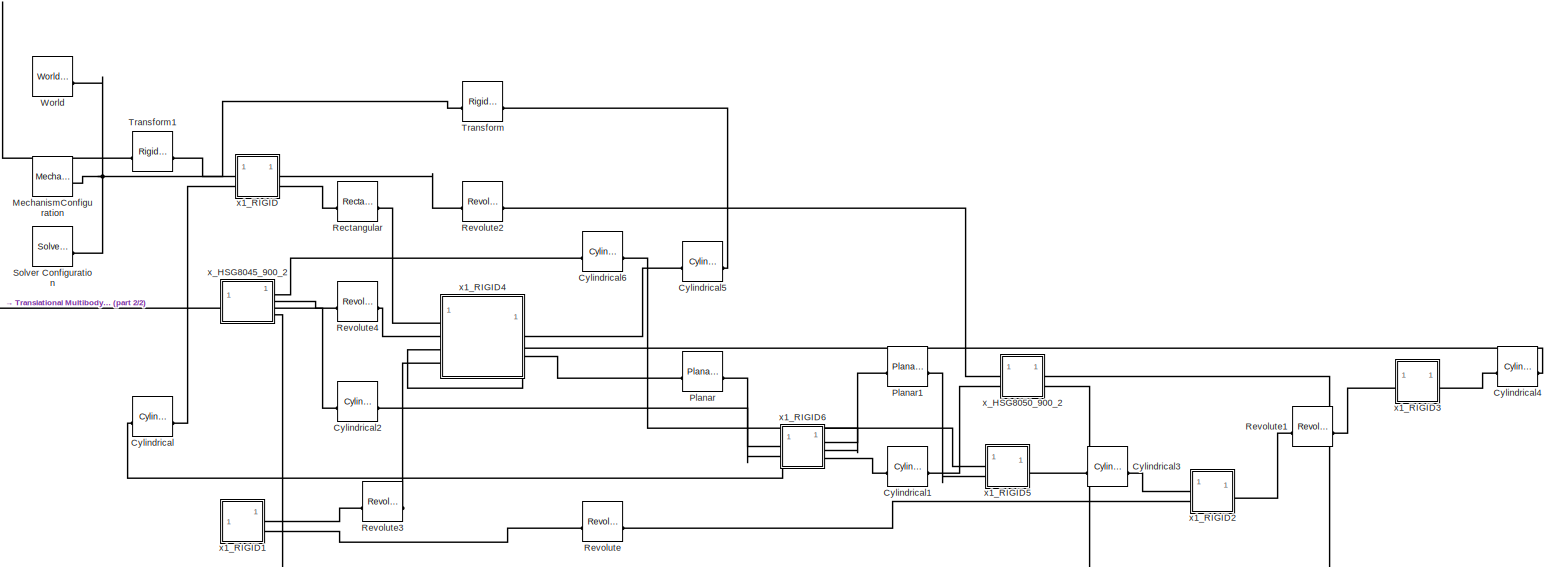
[diagram: root canvas - part 1/2, full width, top band]
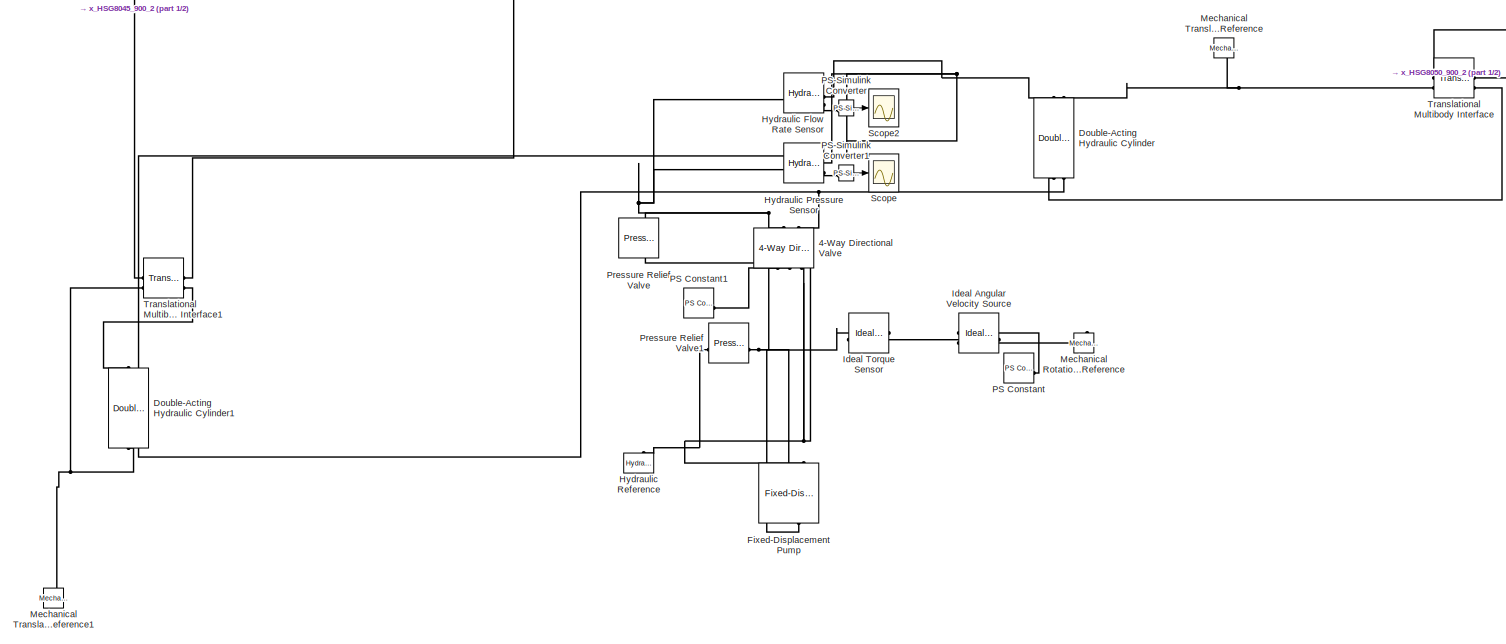
[diagram: root canvas - part 2/2, full width, bottom band]
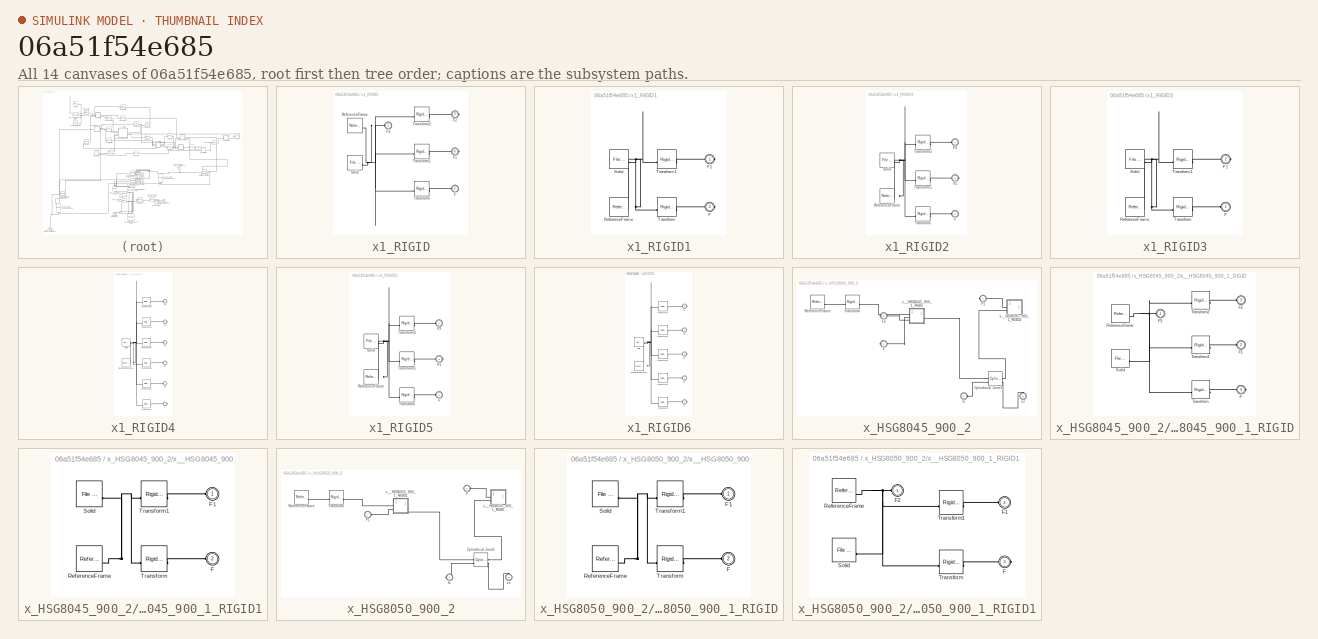
[diagram: thumbnail index - all 14 canvases of the model, root first then tree order]
MODEL slx_06a51f54e685
KIND model
CONFIG AbsTol = auto
CONFIG EnableMultiTasking = off
CONFIG FixedStep = auto
CONFIG MaxStep = auto
CONFIG MinStep = auto
CONFIG RelTol = 1e-3
CONFIG SampleTimeConstraint = Unconstrained
CONFIG SolverName = VariableStepAuto
CONFIG StartTime = 0.0
CONFIG StopTime = 10.0
WORKSPACE source: external: MATLAB File  (data not in archive)
BLOCK [Reference] 4-Way Directional Valve  REF=sh_lib/Valves/Directional Valves/4-Way Directional
Valve
  NameLocation = right
  SourceBlock = sh_lib/Valves/Directional Valves/4-Way Directional\nValve
  SourceType = 4-Way Directional\nValve
BLOCK [Reference] Cylindrical  REF=sm_lib/Joints/Cylindrical
Joint
  SourceBlock = sm_lib/Joints/Cylindrical\nJoint
  SourceType = Cylindrical\nJoint
BLOCK [Reference] Cylindrical1  REF=sm_lib/Joints/Cylindrical
Joint
  SourceBlock = sm_lib/Joints/Cylindrical\nJoint
  SourceType = Cylindrical\nJoint
BLOCK [Reference] Cylindrical2  REF=sm_lib/Joints/Cylindrical
Joint
  SourceBlock = sm_lib/Joints/Cylindrical\nJoint
  SourceType = Cylindrical\nJoint
BLOCK [Reference] Cylindrical3  REF=sm_lib/Joints/Cylindrical
Joint
  SourceBlock = sm_lib/Joints/Cylindrical\nJoint
  SourceType = Cylindrical\nJoint
BLOCK [Reference] Cylindrical4  REF=sm_lib/Joints/Cylindrical
Joint
  SourceBlock = sm_lib/Joints/Cylindrical\nJoint
  SourceType = Cylindrical\nJoint
BLOCK [Reference] Cylindrical5  REF=sm_lib/Joints/Cylindrical
Joint
  SourceBlock = sm_lib/Joints/Cylindrical\nJoint
  SourceType = Cylindrical\nJoint
BLOCK [Reference] Cylindrical6  REF=sm_lib/Joints/Cylindrical
Joint
  SourceBlock = sm_lib/Joints/Cylindrical\nJoint
  SourceType = Cylindrical\nJoint
BLOCK [Reference] Double-Acting Hydraulic Cylinder  REF=sh_lib/Hydraulic Cylinders/Double-Acting
Hydraulic Cylinder
  NameLocation = left
  SourceBlock = sh_lib/Hydraulic Cylinders/Double-Acting\nHydraulic Cylinder
  SourceType = Double-Acting\nHydraulic Cylinder
BLOCK [Reference] Double-Acting Hydraulic Cylinder1  REF=sh_lib/Hydraulic Cylinders/Double-Acting
Hydraulic Cylinder
  Commented = on
  NameLocation = left
  SourceBlock = sh_lib/Hydraulic Cylinders/Double-Acting\nHydraulic Cylinder
  SourceType = Double-Acting\nHydraulic Cylinder
BLOCK [Reference] Fixed-Displacement Pump  REF=sh_lib/Pumps and Motors/Fixed-Displacement
Pump
  NameLocation = right
  SourceBlock = sh_lib/Pumps and Motors/Fixed-Displacement\nPump
  SourceType = Fixed-Displacement\nPump
BLOCK [Reference] Hydraulic Flow Rate Sensor  REF=fl_lib/Hydraulic/Hydraulic Sensors/Hydraulic Flow Rate
Sensor
  SourceBlock = fl_lib/Hydraulic/Hydraulic Sensors/Hydraulic Flow Rate\nSensor
  SourceType = Hydraulic Flow Rate\nSensor
BLOCK [Reference] Hydraulic Pressure Sensor  REF=fl_lib/Hydraulic/Hydraulic Sensors/Hydraulic Pressure
Sensor
  Commented = on
  SourceBlock = fl_lib/Hydraulic/Hydraulic Sensors/Hydraulic Pressure\nSensor
  SourceType = Hydraulic Pressure\nSensor
BLOCK [Reference] Hydraulic Reference  REF=fl_lib/Hydraulic/Hydraulic Elements/Hydraulic Reference
  NameLocation = right
  SourceBlock = fl_lib/Hydraulic/Hydraulic Elements/Hydraulic Reference
  SourceType = Hydraulic Reference
BLOCK [Reference] Ideal Angular Velocity Source  REF=fl_lib/Mechanical/Mechanical Sources/Ideal Angular
Velocity Source
  NameLocation = top
  SourceBlock = fl_lib/Mechanical/Mechanical Sources/Ideal Angular\nVelocity Source
  SourceType = Ideal Angular\nVelocity Source
BLOCK [Reference] Ideal Torque Sensor  REF=fl_lib/Mechanical/Mechanical Sensors/Ideal Torque Sensor
  NameLocation = top
  SourceBlock = fl_lib/Mechanical/Mechanical Sensors/Ideal Torque Sensor
  SourceType = Ideal Torque Sensor
BLOCK [Reference] Mechanical Rotational Reference  REF=fl_lib/Mechanical/Rotational Elements/Mechanical
Rotational Reference
  NameLocation = right
  SourceBlock = fl_lib/Mechanical/Rotational Elements/Mechanical\nRotational Reference
  SourceType = Mechanical\nRotational Reference
BLOCK [Reference] Mechanical Translational Reference  REF=fl_lib/Mechanical/Translational
Elements/Mechanical
Translational
Reference
  NameLocation = left
  SourceBlock = fl_lib/Mechanical/Translational\nElements/Mechanical\nTranslational\nReference
  SourceType = Mechanical\nTranslational\nReference
BLOCK [Reference] Mechanical Translational Reference1  REF=fl_lib/Mechanical/Translational
Elements/Mechanical
Translational
Reference
  Commented = on
  NameLocation = right
  SourceBlock = fl_lib/Mechanical/Translational\nElements/Mechanical\nTranslational\nReference
  SourceType = Mechanical\nTranslational\nReference
BLOCK [Reference] MechanismConfiguration  REF=sm_lib/Utilities/Mechanism
Configuration
  SourceBlock = sm_lib/Utilities/Mechanism\nConfiguration
  SourceType = Mechanism\nConfiguration
BLOCK [Reference] PS Constant  REF=fl_lib/Physical Signals/Sources/PS Constant
  SourceBlock = fl_lib/Physical Signals/Sources/PS Constant
  SourceType = PS Constant
BLOCK [Reference] PS Constant1  REF=fl_lib/Physical Signals/Sources/PS Constant
  SourceBlock = fl_lib/Physical Signals/Sources/PS Constant
  SourceType = PS Constant
BLOCK [Reference] PS-Simulink Converter  REF=nesl_utility/PS-Simulink
Converter
  SourceBlock = nesl_utility/PS-Simulink\nConverter
  SourceType = PS-Simulink\nConverter
BLOCK [Reference] PS-Simulink Converter1  REF=nesl_utility/PS-Simulink
Converter
  Commented = on
  SourceBlock = nesl_utility/PS-Simulink\nConverter
  SourceType = PS-Simulink\nConverter
BLOCK [Reference] Planar  REF=sm_lib/Joints/Planar Joint
  SourceBlock = sm_lib/Joints/Planar Joint
  SourceType = Planar Joint
BLOCK [Reference] Planar1  REF=sm_lib/Joints/Planar Joint
  SourceBlock = sm_lib/Joints/Planar Joint
  SourceType = Planar Joint
BLOCK [Reference] Pressure Relief Valve  REF=sh_lib/Valves/Pressure Control
Valves/Pressure Relief
Valve
  NameLocation = right
  SourceBlock = sh_lib/Valves/Pressure Control\nValves/Pressure Relief\nValve
  SourceType = Pressure Relief\nValve
BLOCK [Reference] Pressure Relief Valve1  REF=sh_lib/Valves/Pressure Control
Valves/Pressure Relief
Valve
  SourceBlock = sh_lib/Valves/Pressure Control\nValves/Pressure Relief\nValve
  SourceType = Pressure Relief\nValve
BLOCK [Reference] Rectangular  REF=sm_lib/Joints/Rectangular
Joint
  SourceBlock = sm_lib/Joints/Rectangular\nJoint
  SourceType = Rectangular\nJoint
BLOCK [Reference] Revolute  REF=sm_lib/Joints/Revolute Joint
  SourceBlock = sm_lib/Joints/Revolute Joint
  SourceType = Revolute Joint
BLOCK [Reference] Revolute1  REF=sm_lib/Joints/Revolute Joint
  SourceBlock = sm_lib/Joints/Revolute Joint
  SourceType = Revolute Joint
BLOCK [Reference] Revolute2  REF=sm_lib/Joints/Revolute Joint
  SourceBlock = sm_lib/Joints/Revolute Joint
  SourceType = Revolute Joint
BLOCK [Reference] Revolute3  REF=sm_lib/Joints/Revolute Joint
  SourceBlock = sm_lib/Joints/Revolute Joint
  SourceType = Revolute Joint
BLOCK [Reference] Revolute4  REF=sm_lib/Joints/Revolute Joint
  SourceBlock = sm_lib/Joints/Revolute Joint
  SourceType = Revolute Joint
BLOCK [Scope] Scope
  Commented = on
  Floating = off
  NumInputPorts = 1
  ScopeSpecificationString = Simulink.scopes.TimeScopeBlockCfg('CurrentConfiguration', extmgr.ConfigurationSet(extmgr.Configuration('Core','General UI',true),extmgr.Configuration('Core','Source UI',true),extmgr.Configuration('Sources','WiredSimulink',true,'DataLoggingVariableName','ScopeData1'),extmgr.Configuration('Visuals','Time Domain',true,'SerializedDisplays',{struct('MinYLimReal','10037620.95835','MaxYLimReal','10037781...<+1494ch>
BLOCK [Scope] Scope2
  Floating = off
  NumInputPorts = 1
  ScopeSpecificationString = Simulink.scopes.TimeScopeBlockCfg('CurrentConfiguration', extmgr.ConfigurationSet(extmgr.Configuration('Core','General UI',true),extmgr.Configuration('Core','Source UI',true),extmgr.Configuration('Sources','WiredSimulink',true),extmgr.Configuration('Visuals','Time Domain',true,'SerializedDisplays',{struct('MinYLimReal','1.42874','MaxYLimReal','1.43773','YLabelReal','','MinYLimMag','1.42874','MaxYL...<+1420ch>
BLOCK [Reference] Solver Configuration  REF=nesl_utility/Solver
Configuration
  SourceBlock = nesl_utility/Solver\nConfiguration
  SourceType = Solver\nConfiguration
BLOCK [Reference] Transform  REF=sm_lib/Frames and
Transforms/Rigid
Transform
  SourceBlock = sm_lib/Frames and\nTransforms/Rigid\nTransform
  SourceType = Rigid\nTransform
BLOCK [Reference] Transform1  REF=sm_lib/Frames and
Transforms/Rigid
Transform
  SourceBlock = sm_lib/Frames and\nTransforms/Rigid\nTransform
  SourceType = Rigid\nTransform
BLOCK [Reference] Translational Multibody Interface  REF=fl_lib/Mechanical/Multibody Interfaces/Translational
Multibody Interface
  SourceBlock = fl_lib/Mechanical/Multibody Interfaces/Translational\nMultibody Interface
  SourceType = Translational\nMultibody Interface
BLOCK [Reference] Translational Multibody Interface1  REF=fl_lib/Mechanical/Multibody Interfaces/Translational
Multibody Interface
  Commented = on
  SourceBlock = fl_lib/Mechanical/Multibody Interfaces/Translational\nMultibody Interface
  SourceType = Translational\nMultibody Interface
BLOCK [Reference] World  REF=sm_lib/Frames and
Transforms/World Frame
  SourceBlock = sm_lib/Frames and\nTransforms/World Frame
  SourceType = World Frame
BLOCK [SubSystem] x1_RIGID
BLOCK [PMIOPort] x1_RIGID/F
  Port = 2
  Side = Left
BLOCK [PMIOPort] x1_RIGID/F1
  Port = 4
  Side = Right
BLOCK [PMIOPort] x1_RIGID/F2
  Port = 3
  Side = Right
BLOCK [PMIOPort] x1_RIGID/F3
  Side = Left
BLOCK [Reference] x1_RIGID/ReferenceFrame  REF=sm_lib/Frames and
Transforms/Reference
Frame
  SourceBlock = sm_lib/Frames and\nTransforms/Reference\nFrame
  SourceType = Reference\nFrame
BLOCK [Reference] x1_RIGID/Solid  REF=sm_lib/Body Elements/File Solid
  SourceBlock = sm_lib/Body Elements/File Solid
  SourceType = File Solid
BLOCK [Reference] x1_RIGID/Transform  REF=sm_lib/Frames and
Transforms/Rigid
Transform
  SourceBlock = sm_lib/Frames and\nTransforms/Rigid\nTransform
  SourceType = Rigid\nTransform
BLOCK [Reference] x1_RIGID/Transform1  REF=sm_lib/Frames and
Transforms/Rigid
Transform
  SourceBlock = sm_lib/Frames and\nTransforms/Rigid\nTransform
  SourceType = Rigid\nTransform
BLOCK [Reference] x1_RIGID/Transform2  REF=sm_lib/Frames and
Transforms/Rigid
Transform
  SourceBlock = sm_lib/Frames and\nTransforms/Rigid\nTransform
  SourceType = Rigid\nTransform
BLOCK [SubSystem] x1_RIGID1
BLOCK [PMIOPort] x1_RIGID1/F
  Port = 2
  Side = Right
BLOCK [PMIOPort] x1_RIGID1/F1
  Side = Right
BLOCK [Reference] x1_RIGID1/ReferenceFrame  REF=sm_lib/Frames and
Transforms/Reference
Frame
  SourceBlock = sm_lib/Frames and\nTransforms/Reference\nFrame
  SourceType = Reference\nFrame
BLOCK [Reference] x1_RIGID1/Solid  REF=sm_lib/Body Elements/File Solid
  SourceBlock = sm_lib/Body Elements/File Solid
  SourceType = File Solid
BLOCK [Reference] x1_RIGID1/Transform  REF=sm_lib/Frames and
Transforms/Rigid
Transform
  SourceBlock = sm_lib/Frames and\nTransforms/Rigid\nTransform
  SourceType = Rigid\nTransform
BLOCK [Reference] x1_RIGID1/Transform1  REF=sm_lib/Frames and
Transforms/Rigid
Transform
  SourceBlock = sm_lib/Frames and\nTransforms/Rigid\nTransform
  SourceType = Rigid\nTransform
BLOCK [SubSystem] x1_RIGID2
BLOCK [PMIOPort] x1_RIGID2/F
  Port = 2
  Side = Left
BLOCK [PMIOPort] x1_RIGID2/F1
  Port = 3
  Side = Right
BLOCK [PMIOPort] x1_RIGID2/F2
  Side = Left
BLOCK [Reference] x1_RIGID2/ReferenceFrame  REF=sm_lib/Frames and
Transforms/Reference
Frame
  SourceBlock = sm_lib/Frames and\nTransforms/Reference\nFrame
  SourceType = Reference\nFrame
BLOCK [Reference] x1_RIGID2/Solid  REF=sm_lib/Body Elements/File Solid
  SourceBlock = sm_lib/Body Elements/File Solid
  SourceType = File Solid
BLOCK [Reference] x1_RIGID2/Transform  REF=sm_lib/Frames and
Transforms/Rigid
Transform
  SourceBlock = sm_lib/Frames and\nTransforms/Rigid\nTransform
  SourceType = Rigid\nTransform
BLOCK [Reference] x1_RIGID2/Transform1  REF=sm_lib/Frames and
Transforms/Rigid
Transform
  SourceBlock = sm_lib/Frames and\nTransforms/Rigid\nTransform
  SourceType = Rigid\nTransform
BLOCK [Reference] x1_RIGID2/Transform2  REF=sm_lib/Frames and
Transforms/Rigid
Transform
  SourceBlock = sm_lib/Frames and\nTransforms/Rigid\nTransform
  SourceType = Rigid\nTransform
BLOCK [SubSystem] x1_RIGID3
BLOCK [PMIOPort] x1_RIGID3/F
  Side = Left
BLOCK [PMIOPort] x1_RIGID3/F1
  Port = 2
  Side = Right
BLOCK [Reference] x1_RIGID3/ReferenceFrame  REF=sm_lib/Frames and
Transforms/Reference
Frame
  SourceBlock = sm_lib/Frames and\nTransforms/Reference\nFrame
  SourceType = Reference\nFrame
BLOCK [Reference] x1_RIGID3/Solid  REF=sm_lib/Body Elements/File Solid
  SourceBlock = sm_lib/Body Elements/File Solid
  SourceType = File Solid
BLOCK [Reference] x1_RIGID3/Transform  REF=sm_lib/Frames and
Transforms/Rigid
Transform
  SourceBlock = sm_lib/Frames and\nTransforms/Rigid\nTransform
  SourceType = Rigid\nTransform
BLOCK [Reference] x1_RIGID3/Transform1  REF=sm_lib/Frames and
Transforms/Rigid
Transform
  SourceBlock = sm_lib/Frames and\nTransforms/Rigid\nTransform
  SourceType = Rigid\nTransform
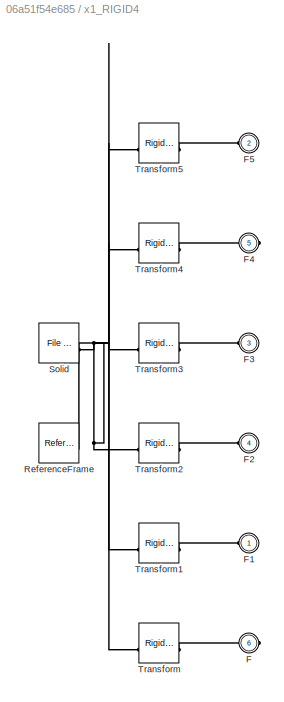
BLOCK [SubSystem] x1_RIGID4
BLOCK [PMIOPort] x1_RIGID4/F
  Port = 6
  Side = Right
BLOCK [PMIOPort] x1_RIGID4/F1
  Side = Left
BLOCK [PMIOPort] x1_RIGID4/F2
  Port = 4
  Side = Left
BLOCK [PMIOPort] x1_RIGID4/F3
  Port = 3
  Side = Left
BLOCK [PMIOPort] x1_RIGID4/F4
  Port = 5
  Side = Right
BLOCK [PMIOPort] x1_RIGID4/F5
  Port = 2
  Side = Left
BLOCK [Reference] x1_RIGID4/ReferenceFrame  REF=sm_lib/Frames and
Transforms/Reference
Frame
  SourceBlock = sm_lib/Frames and\nTransforms/Reference\nFrame
  SourceType = Reference\nFrame
BLOCK [Reference] x1_RIGID4/Solid  REF=sm_lib/Body Elements/File Solid
  SourceBlock = sm_lib/Body Elements/File Solid
  SourceType = File Solid
BLOCK [Reference] x1_RIGID4/Transform  REF=sm_lib/Frames and
Transforms/Rigid
Transform
  SourceBlock = sm_lib/Frames and\nTransforms/Rigid\nTransform
  SourceType = Rigid\nTransform
BLOCK [Reference] x1_RIGID4/Transform1  REF=sm_lib/Frames and
Transforms/Rigid
Transform
  SourceBlock = sm_lib/Frames and\nTransforms/Rigid\nTransform
  SourceType = Rigid\nTransform
BLOCK [Reference] x1_RIGID4/Transform2  REF=sm_lib/Frames and
Transforms/Rigid
Transform
  SourceBlock = sm_lib/Frames and\nTransforms/Rigid\nTransform
  SourceType = Rigid\nTransform
BLOCK [Reference] x1_RIGID4/Transform3  REF=sm_lib/Frames and
Transforms/Rigid
Transform
  SourceBlock = sm_lib/Frames and\nTransforms/Rigid\nTransform
  SourceType = Rigid\nTransform
BLOCK [Reference] x1_RIGID4/Transform4  REF=sm_lib/Frames and
Transforms/Rigid
Transform
  SourceBlock = sm_lib/Frames and\nTransforms/Rigid\nTransform
  SourceType = Rigid\nTransform
BLOCK [Reference] x1_RIGID4/Transform5  REF=sm_lib/Frames and
Transforms/Rigid
Transform
  SourceBlock = sm_lib/Frames and\nTransforms/Rigid\nTransform
  SourceType = Rigid\nTransform
BLOCK [SubSystem] x1_RIGID5
BLOCK [PMIOPort] x1_RIGID5/F
  Port = 2
  Side = Left
BLOCK [PMIOPort] x1_RIGID5/F1
  Port = 3
  Side = Right
BLOCK [PMIOPort] x1_RIGID5/F2
  Side = Left
BLOCK [Reference] x1_RIGID5/ReferenceFrame  REF=sm_lib/Frames and
Transforms/Reference
Frame
  SourceBlock = sm_lib/Frames and\nTransforms/Reference\nFrame
  SourceType = Reference\nFrame
BLOCK [Reference] x1_RIGID5/Solid  REF=sm_lib/Body Elements/File Solid
  SourceBlock = sm_lib/Body Elements/File Solid
  SourceType = File Solid
BLOCK [Reference] x1_RIGID5/Transform  REF=sm_lib/Frames and
Transforms/Rigid
Transform
  SourceBlock = sm_lib/Frames and\nTransforms/Rigid\nTransform
  SourceType = Rigid\nTransform
BLOCK [Reference] x1_RIGID5/Transform1  REF=sm_lib/Frames and
Transforms/Rigid
Transform
  SourceBlock = sm_lib/Frames and\nTransforms/Rigid\nTransform
  SourceType = Rigid\nTransform
BLOCK [Reference] x1_RIGID5/Transform2  REF=sm_lib/Frames and
Transforms/Rigid
Transform
  SourceBlock = sm_lib/Frames and\nTransforms/Rigid\nTransform
  SourceType = Rigid\nTransform
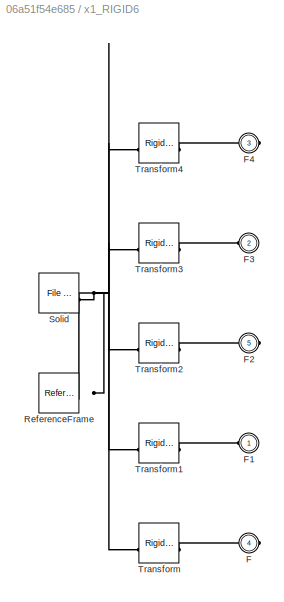
BLOCK [SubSystem] x1_RIGID6
BLOCK [PMIOPort] x1_RIGID6/F
  Port = 4
  Side = Right
BLOCK [PMIOPort] x1_RIGID6/F1
  Side = Left
BLOCK [PMIOPort] x1_RIGID6/F2
  Port = 5
  Side = Right
BLOCK [PMIOPort] x1_RIGID6/F3
  Port = 2
  Side = Left
BLOCK [PMIOPort] x1_RIGID6/F4
  Port = 3
  Side = Right
BLOCK [Reference] x1_RIGID6/ReferenceFrame  REF=sm_lib/Frames and
Transforms/Reference
Frame
  SourceBlock = sm_lib/Frames and\nTransforms/Reference\nFrame
  SourceType = Reference\nFrame
BLOCK [Reference] x1_RIGID6/Solid  REF=sm_lib/Body Elements/File Solid
  SourceBlock = sm_lib/Body Elements/File Solid
  SourceType = File Solid
BLOCK [Reference] x1_RIGID6/Transform  REF=sm_lib/Frames and
Transforms/Rigid
Transform
  SourceBlock = sm_lib/Frames and\nTransforms/Rigid\nTransform
  SourceType = Rigid\nTransform
BLOCK [Reference] x1_RIGID6/Transform1  REF=sm_lib/Frames and
Transforms/Rigid
Transform
  SourceBlock = sm_lib/Frames and\nTransforms/Rigid\nTransform
  SourceType = Rigid\nTransform
BLOCK [Reference] x1_RIGID6/Transform2  REF=sm_lib/Frames and
Transforms/Rigid
Transform
  SourceBlock = sm_lib/Frames and\nTransforms/Rigid\nTransform
  SourceType = Rigid\nTransform
BLOCK [Reference] x1_RIGID6/Transform3  REF=sm_lib/Frames and
Transforms/Rigid
Transform
  SourceBlock = sm_lib/Frames and\nTransforms/Rigid\nTransform
  SourceType = Rigid\nTransform
BLOCK [Reference] x1_RIGID6/Transform4  REF=sm_lib/Frames and
Transforms/Rigid
Transform
  SourceBlock = sm_lib/Frames and\nTransforms/Rigid\nTransform
  SourceType = Rigid\nTransform
BLOCK [SubSystem] x_HSG8045_900_2
BLOCK [Reference] x_HSG8045_900_2/Cylindrical Joint1  REF=sm_lib/Joints/Cylindrical
Joint
  SourceBlock = sm_lib/Joints/Cylindrical\nJoint
  SourceType = Cylindrical\nJoint
BLOCK [PMIOPort] x_HSG8045_900_2/F
  Port = 3
  Side = Right
BLOCK [PMIOPort] x_HSG8045_900_2/F1
  Port = 2
  Side = Right
BLOCK [PMIOPort] x_HSG8045_900_2/F2
  Side = Right
BLOCK [Reference] x_HSG8045_900_2/ReferenceFrame  REF=sm_lib/Frames and
Transforms/Reference
Frame
  SourceBlock = sm_lib/Frames and\nTransforms/Reference\nFrame
  SourceType = Reference\nFrame
BLOCK [Reference] x_HSG8045_900_2/Transform  REF=sm_lib/Frames and
Transforms/Rigid
Transform
  SourceBlock = sm_lib/Frames and\nTransforms/Rigid\nTransform
  SourceType = Rigid\nTransform
BLOCK [PMIOPort] x_HSG8045_900_2/fz
  Port = 4
  Side = Left
BLOCK [PMIOPort] x_HSG8045_900_2/vz
  NameLocation = left
  Port = 5
  Side = Right
BLOCK [SubSystem] x_HSG8045_900_2/x__HSG8045_900_1_RIGID
BLOCK [PMIOPort] x_HSG8045_900_2/x__HSG8045_900_1_RIGID/F
  Port = 4
  Side = Right
BLOCK [PMIOPort] x_HSG8045_900_2/x__HSG8045_900_1_RIGID/F1
  Port = 2
  Side = Left
BLOCK [PMIOPort] x_HSG8045_900_2/x__HSG8045_900_1_RIGID/F2
  Port = 3
  Side = Left
BLOCK [PMIOPort] x_HSG8045_900_2/x__HSG8045_900_1_RIGID/F3
  Side = Left
BLOCK [Reference] x_HSG8045_900_2/x__HSG8045_900_1_RIGID/ReferenceFrame  REF=sm_lib/Frames and
Transforms/Reference
Frame
  SourceBlock = sm_lib/Frames and\nTransforms/Reference\nFrame
  SourceType = Reference\nFrame
BLOCK [Reference] x_HSG8045_900_2/x__HSG8045_900_1_RIGID/Solid  REF=sm_lib/Body Elements/File Solid
  SourceBlock = sm_lib/Body Elements/File Solid
  SourceType = File Solid
BLOCK [Reference] x_HSG8045_900_2/x__HSG8045_900_1_RIGID/Transform  REF=sm_lib/Frames and
Transforms/Rigid
Transform
  SourceBlock = sm_lib/Frames and\nTransforms/Rigid\nTransform
  SourceType = Rigid\nTransform
BLOCK [Reference] x_HSG8045_900_2/x__HSG8045_900_1_RIGID/Transform1  REF=sm_lib/Frames and
Transforms/Rigid
Transform
  SourceBlock = sm_lib/Frames and\nTransforms/Rigid\nTransform
  SourceType = Rigid\nTransform
BLOCK [Reference] x_HSG8045_900_2/x__HSG8045_900_1_RIGID/Transform2  REF=sm_lib/Frames and
Transforms/Rigid
Transform
  SourceBlock = sm_lib/Frames and\nTransforms/Rigid\nTransform
  SourceType = Rigid\nTransform
BLOCK [SubSystem] x_HSG8045_900_2/x__HSG8045_900_1_RIGID1
BLOCK [PMIOPort] x_HSG8045_900_2/x__HSG8045_900_1_RIGID1/F
  Port = 2
  Side = Left
BLOCK [PMIOPort] x_HSG8045_900_2/x__HSG8045_900_1_RIGID1/F1
  Side = Left
BLOCK [Reference] x_HSG8045_900_2/x__HSG8045_900_1_RIGID1/ReferenceFrame  REF=sm_lib/Frames and
Transforms/Reference
Frame
  SourceBlock = sm_lib/Frames and\nTransforms/Reference\nFrame
  SourceType = Reference\nFrame
BLOCK [Reference] x_HSG8045_900_2/x__HSG8045_900_1_RIGID1/Solid  REF=sm_lib/Body Elements/File Solid
  SourceBlock = sm_lib/Body Elements/File Solid
  SourceType = File Solid
BLOCK [Reference] x_HSG8045_900_2/x__HSG8045_900_1_RIGID1/Transform  REF=sm_lib/Frames and
Transforms/Rigid
Transform
  SourceBlock = sm_lib/Frames and\nTransforms/Rigid\nTransform
  SourceType = Rigid\nTransform
BLOCK [Reference] x_HSG8045_900_2/x__HSG8045_900_1_RIGID1/Transform1  REF=sm_lib/Frames and
Transforms/Rigid
Transform
  SourceBlock = sm_lib/Frames and\nTransforms/Rigid\nTransform
  SourceType = Rigid\nTransform
BLOCK [SubSystem] x_HSG8050_900_2
BLOCK [Reference] x_HSG8050_900_2/Cylindrical Joint1  REF=sm_lib/Joints/Cylindrical
Joint
  SourceBlock = sm_lib/Joints/Cylindrical\nJoint
  SourceType = Cylindrical\nJoint
BLOCK [PMIOPort] x_HSG8050_900_2/F
  Port = 2
  Side = Left
BLOCK [PMIOPort] x_HSG8050_900_2/F1
  Side = Left
BLOCK [Reference] x_HSG8050_900_2/ReferenceFrame  REF=sm_lib/Frames and
Transforms/Reference
Frame
  SourceBlock = sm_lib/Frames and\nTransforms/Reference\nFrame
  SourceType = Reference\nFrame
BLOCK [Reference] x_HSG8050_900_2/Transform  REF=sm_lib/Frames and
Transforms/Rigid
Transform
  SourceBlock = sm_lib/Frames and\nTransforms/Rigid\nTransform
  SourceType = Rigid\nTransform
BLOCK [PMIOPort] x_HSG8050_900_2/fz
  Port = 4
  Side = Right
BLOCK [PMIOPort] x_HSG8050_900_2/vz
  NameLocation = left
  Port = 3
  Side = Right
BLOCK [SubSystem] x_HSG8050_900_2/x__HSG8050_900_1_RIGID
BLOCK [PMIOPort] x_HSG8050_900_2/x__HSG8050_900_1_RIGID/F
  Port = 2
  Side = Left
BLOCK [PMIOPort] x_HSG8050_900_2/x__HSG8050_900_1_RIGID/F1
  Side = Left
BLOCK [Reference] x_HSG8050_900_2/x__HSG8050_900_1_RIGID/ReferenceFrame  REF=sm_lib/Frames and
Transforms/Reference
Frame
  SourceBlock = sm_lib/Frames and\nTransforms/Reference\nFrame
  SourceType = Reference\nFrame
BLOCK [Reference] x_HSG8050_900_2/x__HSG8050_900_1_RIGID/Solid  REF=sm_lib/Body Elements/File Solid
  SourceBlock = sm_lib/Body Elements/File Solid
  SourceType = File Solid
BLOCK [Reference] x_HSG8050_900_2/x__HSG8050_900_1_RIGID/Transform  REF=sm_lib/Frames and
Transforms/Rigid
Transform
  SourceBlock = sm_lib/Frames and\nTransforms/Rigid\nTransform
  SourceType = Rigid\nTransform
BLOCK [Reference] x_HSG8050_900_2/x__HSG8050_900_1_RIGID/Transform1  REF=sm_lib/Frames and
Transforms/Rigid
Transform
  SourceBlock = sm_lib/Frames and\nTransforms/Rigid\nTransform
  SourceType = Rigid\nTransform
BLOCK [SubSystem] x_HSG8050_900_2/x__HSG8050_900_1_RIGID1
BLOCK [PMIOPort] x_HSG8050_900_2/x__HSG8050_900_1_RIGID1/F
  Port = 3
  Side = Right
BLOCK [PMIOPort] x_HSG8050_900_2/x__HSG8050_900_1_RIGID1/F1
  Port = 2
  Side = Left
BLOCK [PMIOPort] x_HSG8050_900_2/x__HSG8050_900_1_RIGID1/F2
  Side = Left
BLOCK [Reference] x_HSG8050_900_2/x__HSG8050_900_1_RIGID1/ReferenceFrame  REF=sm_lib/Frames and
Transforms/Reference
Frame
  SourceBlock = sm_lib/Frames and\nTransforms/Reference\nFrame
  SourceType = Reference\nFrame
BLOCK [Reference] x_HSG8050_900_2/x__HSG8050_900_1_RIGID1/Solid  REF=sm_lib/Body Elements/File Solid
  SourceBlock = sm_lib/Body Elements/File Solid
  SourceType = File Solid
BLOCK [Reference] x_HSG8050_900_2/x__HSG8050_900_1_RIGID1/Transform  REF=sm_lib/Frames and
Transforms/Rigid
Transform
  SourceBlock = sm_lib/Frames and\nTransforms/Rigid\nTransform
  SourceType = Rigid\nTransform
BLOCK [Reference] x_HSG8050_900_2/x__HSG8050_900_1_RIGID1/Transform1  REF=sm_lib/Frames and
Transforms/Rigid
Transform
  SourceBlock = sm_lib/Frames and\nTransforms/Rigid\nTransform
  SourceType = Rigid\nTransform
LINE PS-Simulink Converter1:1 -> Scope:1
LINE PS-Simulink Converter:1 -> Scope2:1
PNET net1: 4-Way Directional Valve:LConn1 -- Hydraulic Flow Rate Sensor:LConn1 -- Hydraulic Pressure Sensor:LConn1 -- Pressure Relief Valve:LConn1
PNET net2: 4-Way Directional Valve:LConn2 -- Double-Acting Hydraulic Cylinder1:LConn2 -- Double-Acting Hydraulic Cylinder:RConn2
PLINE 4-Way Directional Valve:RConn1 -- PS Constant1:RConn1
PNET net3: 4-Way Directional Valve:RConn2 -- Fixed-Displacement Pump:RConn1 -- Pressure Relief Valve1:LConn1
PNET net4: 4-Way Directional Valve:RConn3 -- Fixed-Displacement Pump:RConn2 -- Hydraulic Reference:LConn1 -- Pressure Relief Valve1:RConn1 -- Pressure Relief Valve:RConn1
PLINE Cylindrical1:LConn1 -- x1_RIGID6:RConn3
PLINE Cylindrical1:RConn1 -- x_HSG8050_900_2:LConn2
PLINE Cylindrical2:LConn1 -- x_HSG8045_900_2:RConn3
PLINE Cylindrical2:RConn1 -- x1_RIGID6:LConn2
PLINE Cylindrical3:LConn1 -- x1_RIGID5:RConn1
PLINE Cylindrical3:RConn1 -- x1_RIGID2:LConn1
PLINE Cylindrical4:LConn1 -- x1_RIGID3:RConn1
PLINE Cylindrical4:RConn1 -- x1_RIGID4:LConn3
PLINE Cylindrical5:LConn1 -- x1_RIGID4:RConn1
PLINE Cylindrical5:RConn1 -- Transform:RConn1
PLINE Cylindrical6:LConn1 -- x_HSG8045_900_2:RConn1
PLINE Cylindrical6:RConn1 -- x1_RIGID5:LConn1
PLINE Cylindrical:LConn1 -- x1_RIGID6:RConn2
PLINE Cylindrical:RConn1 -- x1_RIGID:LConn2
PNET net5: Double-Acting Hydraulic Cylinder1:LConn1 -- Mechanical Translational Reference1:LConn1 -- Translational Multibody Interface1:LConn2
PLINE Double-Acting Hydraulic Cylinder1:RConn1 -- Translational Multibody Interface1:RConn2
PNET net6: Double-Acting Hydraulic Cylinder1:RConn2 -- Double-Acting Hydraulic Cylinder:LConn2 -- Hydraulic Flow Rate Sensor:RConn2 -- Hydraulic Pressure Sensor:RConn1
PNET net7: Double-Acting Hydraulic Cylinder:LConn1 -- Mechanical Translational Reference:LConn1 -- Translational Multibody Interface:LConn2
PLINE Double-Acting Hydraulic Cylinder:RConn1 -- Translational Multibody Interface:RConn2
PLINE Fixed-Displacement Pump:LConn1 -- Ideal Torque Sensor:RConn1
PLINE Hydraulic Flow Rate Sensor:RConn3 -- PS-Simulink Converter:LConn1
PLINE Hydraulic Pressure Sensor:RConn2 -- PS-Simulink Converter1:LConn1
PLINE Ideal Angular Velocity Source:LConn1 -- Ideal Torque Sensor:LConn1
PLINE Ideal Angular Velocity Source:RConn1 -- PS Constant:RConn1
PLINE Ideal Angular Velocity Source:RConn2 -- Mechanical Rotational Reference:LConn1
PNET net8: MechanismConfiguration:RConn1 -- Solver Configuration:RConn1 -- Transform1:LConn1 -- Transform:LConn1 -- World:RConn1
PLINE Planar1:LConn1 -- x1_RIGID6:RConn1
PLINE Planar1:RConn1 -- x1_RIGID5:LConn2
PLINE Planar:LConn1 -- x1_RIGID4:RConn2
PLINE Planar:RConn1 -- x1_RIGID6:LConn1
PLINE Rectangular:LConn1 -- x1_RIGID:RConn2
PLINE Rectangular:RConn1 -- x1_RIGID4:LConn1
PLINE Revolute1:LConn1 -- x1_RIGID2:RConn1
PLINE Revolute1:RConn1 -- x1_RIGID3:LConn1
PLINE Revolute2:LConn1 -- x1_RIGID:RConn1
PLINE Revolute2:RConn1 -- x_HSG8050_900_2:LConn1
PLINE Revolute3:LConn1 -- x1_RIGID1:RConn1
PLINE Revolute3:RConn1 -- x1_RIGID4:LConn4
PLINE Revolute4:LConn1 -- x_HSG8045_900_2:RConn2
PLINE Revolute4:RConn1 -- x1_RIGID4:LConn2
PLINE Revolute:LConn1 -- x1_RIGID1:RConn2
PLINE Revolute:RConn1 -- x1_RIGID2:LConn2
PLINE Transform1:RConn1 -- x1_RIGID:LConn1
PLINE Translational Multibody Interface1:LConn1 -- x_HSG8045_900_2:LConn1
PLINE Translational Multibody Interface1:RConn1 -- x_HSG8045_900_2:RConn4
PLINE Translational Multibody Interface:LConn1 -- x_HSG8050_900_2:RConn2
PLINE Translational Multibody Interface:RConn1 -- x_HSG8050_900_2:RConn1
PLINE x1_RIGID/F1:RConn1 -- x1_RIGID/Transform1:RConn1
PLINE x1_RIGID/F2:RConn1 -- x1_RIGID/Transform2:RConn1
PNET net9: x1_RIGID/F3:RConn1 -- x1_RIGID/ReferenceFrame:RConn1 -- x1_RIGID/Solid:RConn1 -- x1_RIGID/Transform1:LConn1 -- x1_RIGID/Transform2:LConn1 -- x1_RIGID/Transform:LConn1
PLINE x1_RIGID/F:RConn1 -- x1_RIGID/Transform:RConn1
PLINE x1_RIGID1/F1:RConn1 -- x1_RIGID1/Transform1:RConn1
PLINE x1_RIGID1/F:RConn1 -- x1_RIGID1/Transform:RConn1
PNET net10: x1_RIGID1/ReferenceFrame:RConn1 -- x1_RIGID1/Solid:RConn1 -- x1_RIGID1/Transform1:LConn1 -- x1_RIGID1/Transform:LConn1
PLINE x1_RIGID2/F1:RConn1 -- x1_RIGID2/Transform1:RConn1
PLINE x1_RIGID2/F2:RConn1 -- x1_RIGID2/Transform2:RConn1
PLINE x1_RIGID2/F:RConn1 -- x1_RIGID2/Transform:RConn1
PNET net11: x1_RIGID2/ReferenceFrame:RConn1 -- x1_RIGID2/Solid:RConn1 -- x1_RIGID2/Transform1:LConn1 -- x1_RIGID2/Transform2:LConn1 -- x1_RIGID2/Transform:LConn1
PLINE x1_RIGID3/F1:RConn1 -- x1_RIGID3/Transform1:RConn1
PLINE x1_RIGID3/F:RConn1 -- x1_RIGID3/Transform:RConn1
PNET net12: x1_RIGID3/ReferenceFrame:RConn1 -- x1_RIGID3/Solid:RConn1 -- x1_RIGID3/Transform1:LConn1 -- x1_RIGID3/Transform:LConn1
PLINE x1_RIGID4/F1:RConn1 -- x1_RIGID4/Transform1:RConn1
PLINE x1_RIGID4/F2:RConn1 -- x1_RIGID4/Transform2:RConn1
PLINE x1_RIGID4/F3:RConn1 -- x1_RIGID4/Transform3:RConn1
PLINE x1_RIGID4/F4:RConn1 -- x1_RIGID4/Transform4:RConn1
PLINE x1_RIGID4/F5:RConn1 -- x1_RIGID4/Transform5:RConn1
PLINE x1_RIGID4/F:RConn1 -- x1_RIGID4/Transform:RConn1
PNET net13: x1_RIGID4/ReferenceFrame:RConn1 -- x1_RIGID4/Solid:RConn1 -- x1_RIGID4/Transform1:LConn1 -- x1_RIGID4/Transform2:LConn1 -- x1_RIGID4/Transform3:LConn1 -- x1_RIGID4/Transform4:LConn1 -- x1_RIGID4/Transform5:LConn1 -- x1_RIGID4/Transform:LConn1
PLINE x1_RIGID5/F1:RConn1 -- x1_RIGID5/Transform1:RConn1
PLINE x1_RIGID5/F2:RConn1 -- x1_RIGID5/Transform2:RConn1
PLINE x1_RIGID5/F:RConn1 -- x1_RIGID5/Transform:RConn1
PNET net14: x1_RIGID5/ReferenceFrame:RConn1 -- x1_RIGID5/Solid:RConn1 -- x1_RIGID5/Transform1:LConn1 -- x1_RIGID5/Transform2:LConn1 -- x1_RIGID5/Transform:LConn1
PLINE x1_RIGID6/F1:RConn1 -- x1_RIGID6/Transform1:RConn1
PLINE x1_RIGID6/F2:RConn1 -- x1_RIGID6/Transform2:RConn1
PLINE x1_RIGID6/F3:RConn1 -- x1_RIGID6/Transform3:RConn1
PLINE x1_RIGID6/F4:RConn1 -- x1_RIGID6/Transform4:RConn1
PLINE x1_RIGID6/F:RConn1 -- x1_RIGID6/Transform:RConn1
PNET net15: x1_RIGID6/ReferenceFrame:RConn1 -- x1_RIGID6/Solid:RConn1 -- x1_RIGID6/Transform1:LConn1 -- x1_RIGID6/Transform2:LConn1 -- x1_RIGID6/Transform3:LConn1 -- x1_RIGID6/Transform4:LConn1 -- x1_RIGID6/Transform:LConn1
PLINE x_HSG8045_900_2/Cylindrical Joint1:LConn1 -- x_HSG8045_900_2/x__HSG8045_900_1_RIGID:RConn1
PLINE x_HSG8045_900_2/Cylindrical Joint1:LConn2 -- x_HSG8045_900_2/fz:RConn1
PLINE x_HSG8045_900_2/Cylindrical Joint1:RConn1 -- x_HSG8045_900_2/x__HSG8045_900_1_RIGID1:LConn2
PLINE x_HSG8045_900_2/Cylindrical Joint1:RConn2 -- x_HSG8045_900_2/vz:RConn1
PLINE x_HSG8045_900_2/F1:RConn1 -- x_HSG8045_900_2/x__HSG8045_900_1_RIGID1:LConn1
PLINE x_HSG8045_900_2/F2:RConn1 -- x_HSG8045_900_2/x__HSG8045_900_1_RIGID:LConn3
PLINE x_HSG8045_900_2/F:RConn1 -- x_HSG8045_900_2/x__HSG8045_900_1_RIGID:LConn2
PLINE x_HSG8045_900_2/ReferenceFrame:RConn1 -- x_HSG8045_900_2/Transform:LConn1
PLINE x_HSG8045_900_2/Transform:RConn1 -- x_HSG8045_900_2/x__HSG8045_900_1_RIGID:LConn1
PLINE x_HSG8045_900_2/x__HSG8045_900_1_RIGID/F1:RConn1 -- x_HSG8045_900_2/x__HSG8045_900_1_RIGID/Transform1:RConn1
PLINE x_HSG8045_900_2/x__HSG8045_900_1_RIGID/F2:RConn1 -- x_HSG8045_900_2/x__HSG8045_900_1_RIGID/Transform2:RConn1
PNET net16: x_HSG8045_900_2/x__HSG8045_900_1_RIGID/F3:RConn1 -- x_HSG8045_900_2/x__HSG8045_900_1_RIGID/ReferenceFrame:RConn1 -- x_HSG8045_900_2/x__HSG8045_900_1_RIGID/Solid:RConn1 -- x_HSG8045_900_2/x__HSG8045_900_1_RIGID/Transform1:LConn1 -- x_HSG8045_900_2/x__HSG8045_900_1_RIGID/Transform2:LConn1 -- x_HSG8045_900_2/x__HSG8045_900_1_RIGID/Transform:LConn1
PLINE x_HSG8045_900_2/x__HSG8045_900_1_RIGID/F:RConn1 -- x_HSG8045_900_2/x__HSG8045_900_1_RIGID/Transform:RConn1
PLINE x_HSG8045_900_2/x__HSG8045_900_1_RIGID1/F1:RConn1 -- x_HSG8045_900_2/x__HSG8045_900_1_RIGID1/Transform1:RConn1
PLINE x_HSG8045_900_2/x__HSG8045_900_1_RIGID1/F:RConn1 -- x_HSG8045_900_2/x__HSG8045_900_1_RIGID1/Transform:RConn1
PNET net17: x_HSG8045_900_2/x__HSG8045_900_1_RIGID1/ReferenceFrame:RConn1 -- x_HSG8045_900_2/x__HSG8045_900_1_RIGID1/Solid:RConn1 -- x_HSG8045_900_2/x__HSG8045_900_1_RIGID1/Transform1:LConn1 -- x_HSG8045_900_2/x__HSG8045_900_1_RIGID1/Transform:LConn1
PLINE x_HSG8050_900_2/Cylindrical Joint1:LConn1 -- x_HSG8050_900_2/x__HSG8050_900_1_RIGID1:RConn1
PLINE x_HSG8050_900_2/Cylindrical Joint1:LConn2 -- x_HSG8050_900_2/fz:RConn1
PLINE x_HSG8050_900_2/Cylindrical Joint1:RConn1 -- x_HSG8050_900_2/x__HSG8050_900_1_RIGID:LConn2
PLINE x_HSG8050_900_2/Cylindrical Joint1:RConn2 -- x_HSG8050_900_2/vz:RConn1
PLINE x_HSG8050_900_2/F1:RConn1 -- x_HSG8050_900_2/x__HSG8050_900_1_RIGID1:LConn2
PLINE x_HSG8050_900_2/F:RConn1 -- x_HSG8050_900_2/x__HSG8050_900_1_RIGID:LConn1
PLINE x_HSG8050_900_2/ReferenceFrame:RConn1 -- x_HSG8050_900_2/Transform:LConn1
PLINE x_HSG8050_900_2/Transform:RConn1 -- x_HSG8050_900_2/x__HSG8050_900_1_RIGID1:LConn1
PLINE x_HSG8050_900_2/x__HSG8050_900_1_RIGID/F1:RConn1 -- x_HSG8050_900_2/x__HSG8050_900_1_RIGID/Transform1:RConn1
PLINE x_HSG8050_900_2/x__HSG8050_900_1_RIGID/F:RConn1 -- x_HSG8050_900_2/x__HSG8050_900_1_RIGID/Transform:RConn1
PNET net18: x_HSG8050_900_2/x__HSG8050_900_1_RIGID/ReferenceFrame:RConn1 -- x_HSG8050_900_2/x__HSG8050_900_1_RIGID/Solid:RConn1 -- x_HSG8050_900_2/x__HSG8050_900_1_RIGID/Transform1:LConn1 -- x_HSG8050_900_2/x__HSG8050_900_1_RIGID/Transform:LConn1
PLINE x_HSG8050_900_2/x__HSG8050_900_1_RIGID1/F1:RConn1 -- x_HSG8050_900_2/x__HSG8050_900_1_RIGID1/Transform1:RConn1
PNET net19: x_HSG8050_900_2/x__HSG8050_900_1_RIGID1/F2:RConn1 -- x_HSG8050_900_2/x__HSG8050_900_1_RIGID1/ReferenceFrame:RConn1 -- x_HSG8050_900_2/x__HSG8050_900_1_RIGID1/Solid:RConn1 -- x_HSG8050_900_2/x__HSG8050_900_1_RIGID1/Transform1:LConn1 -- x_HSG8050_900_2/x__HSG8050_900_1_RIGID1/Transform:LConn1
PLINE x_HSG8050_900_2/x__HSG8050_900_1_RIGID1/F:RConn1 -- x_HSG8050_900_2/x__HSG8050_900_1_RIGID1/Transform:RConn1
note: PNET lines group multi-terminal physical nets as a canonical sorted terminal list (undirected conserving connections); 2-terminal nets keep the pairwise PLINE form
